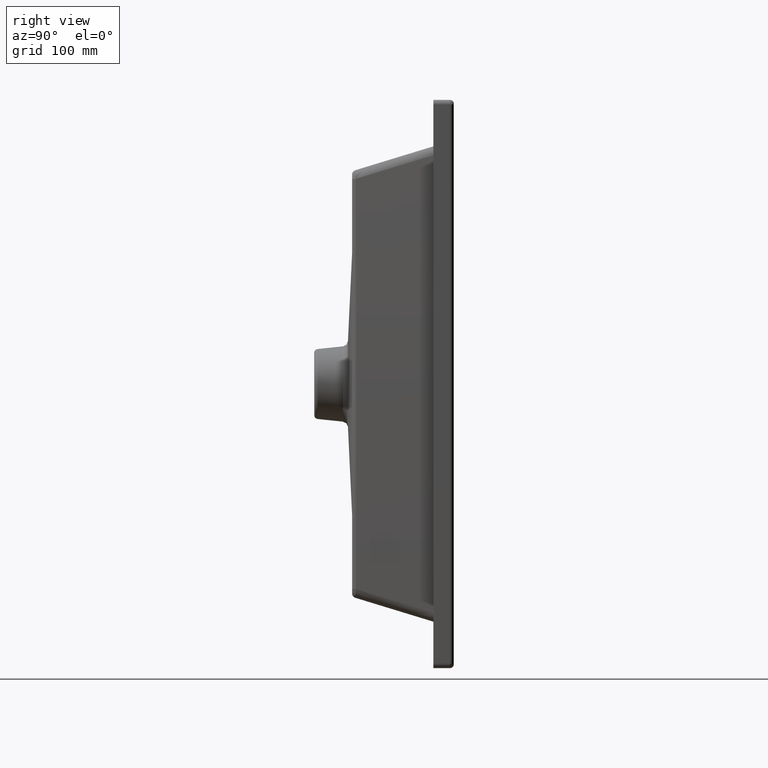
[diagram: clean part render]
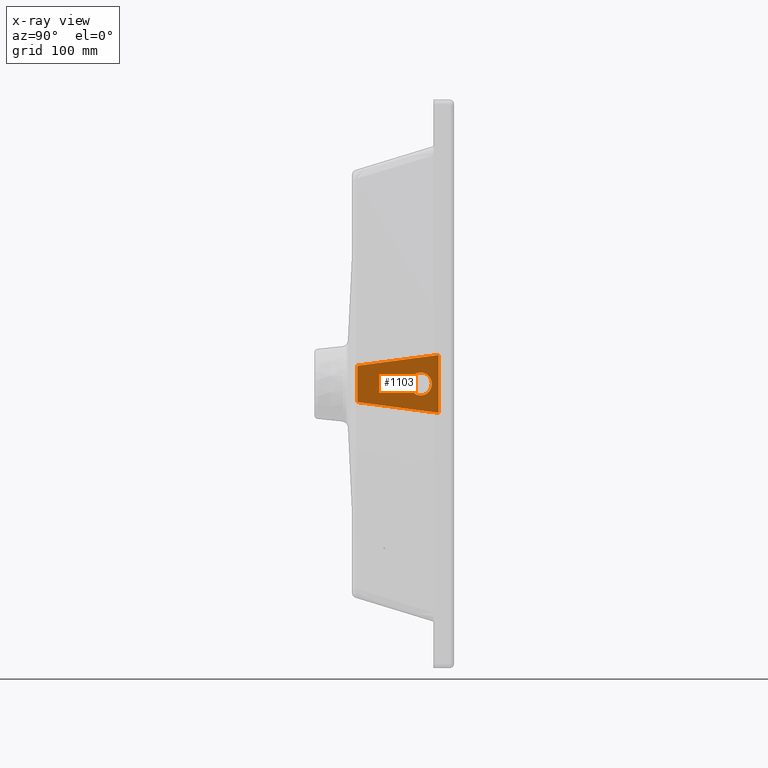
[diagram: x-ray — body ghosted, one internal face saturated and labeled with its STEP entity id]
A machine part, right view, then the same camera in x-ray: the body is ghosted and one INTERNAL B-rep face — a face not visible from any outside direction — is saturated and labeled: STEP entity #1103.
In plain terms, the highlighted planar face has unit normal (0.9563, 0.2924, 0).
Its self-contained STEP definition (entity closure, byte-faithful):
#265=PLANE('',#4788);
#308=FACE_BOUND('',#1746,.T.);
#309=FACE_BOUND('',#1747,.T.);
#469=B_SPLINE_CURVE_WITH_KNOTS('',3,(#12960,#12961,#12962,#12963),
 .UNSPECIFIED.,.F.,.F.,(4,4),(0.,1.),.UNSPECIFIED.);
#641=LINE('',#12909,#824);
#651=LINE('',#12942,#834);
#654=LINE('',#13021,#837);
#824=VECTOR('',#5831,1.);
#834=VECTOR('',#5849,1.);
#837=VECTOR('',#5864,1.);
#1103=ADVANCED_FACE('',(#308,#309),#265,.F.);
#1746=EDGE_LOOP('',(#3220));
#1747=EDGE_LOOP('',(#3221,#3222,#3223,#3224));
#1982=CIRCLE('',#4771,12.5);
#3220=ORIENTED_EDGE('',*,*,#4236,.T.);
#3221=ORIENTED_EDGE('',*,*,#4261,.F.);
#3222=ORIENTED_EDGE('',*,*,#4271,.T.);
#3223=ORIENTED_EDGE('',*,*,#4246,.T.);
#3224=ORIENTED_EDGE('',*,*,#4267,.T.);
#3615=VERTEX_POINT('',#12876);
#3625=VERTEX_POINT('',#12908);
#3626=VERTEX_POINT('',#12910);
#3636=VERTEX_POINT('',#12941);
#3637=VERTEX_POINT('',#12943);
#4236=EDGE_CURVE('',#3615,#3615,#1982,.T.);
#4246=EDGE_CURVE('',#3626,#3625,#641,.T.);
#4261=EDGE_CURVE('',#3636,#3637,#651,.T.);
#4267=EDGE_CURVE('',#3625,#3637,#469,.T.);
#4271=EDGE_CURVE('',#3636,#3626,#654,.T.);
#4771=AXIS2_PLACEMENT_3D('',#12875,#5816,#5817);
#4788=AXIS2_PLACEMENT_3D('',#13024,#5868,#5869);
#5816=DIRECTION('',(0.956304755963035,0.292371704722737,0.));
#5817=DIRECTION('',(-0.292371704722737,0.956304755963035,0.));
#5831=DIRECTION('',(0.29004762451257,-0.948703032122044,0.125836927636746));
#5849=DIRECTION('',(0.29004762451257,-0.948703032122044,-0.125836927636746));
#5864=DIRECTION('',(0.,0.,-1.));
#5868=DIRECTION('',(0.956304755963035,0.292371704722737,0.));
#5869=DIRECTION('',(-0.292371704722737,0.956304755963035,0.));
#12875=CARTESIAN_POINT('',(-119.122164031066,-35.7377839693776,0.));
#12876=CARTESIAN_POINT('',(-122.7768103401,-23.7839745198396,0.));
#12908=CARTESIAN_POINT('',(-98.1881536824485,-104.209846533526,-19.6446165592477));
#12909=CARTESIAN_POINT('',(-120.2889021364,-31.9215555824593,-29.2330084262437));
#12910=CARTESIAN_POINT('',(-124.99208381421,-16.5381414763864,-31.2734799986196));
#12941=CARTESIAN_POINT('',(-124.99208381421,-16.5381414763864,31.2734799986196));
#12942=CARTESIAN_POINT('',(-135.253369930569,17.0250130863211,35.7253306926365));
#12943=CARTESIAN_POINT('',(-98.1881536824485,-104.209846533526,19.6446165592477));
#12960=CARTESIAN_POINT('',(-98.1881536824484,-104.209846533526,-19.6446165592477));
#12961=CARTESIAN_POINT('',(-98.165957490991,-104.282447004475,-6.54802644560482));
#12962=CARTESIAN_POINT('',(-98.1659580979749,-104.28244501912,6.54838458899663));
#12963=CARTESIAN_POINT('',(-98.1881536824484,-104.209846533526,19.6446165592477));
#13021=CARTESIAN_POINT('',(-124.99208381421,-16.5381414763864,-157.044576851881));
#13024=CARTESIAN_POINT('',(-128.975657071556,-3.50846045667285,205.));